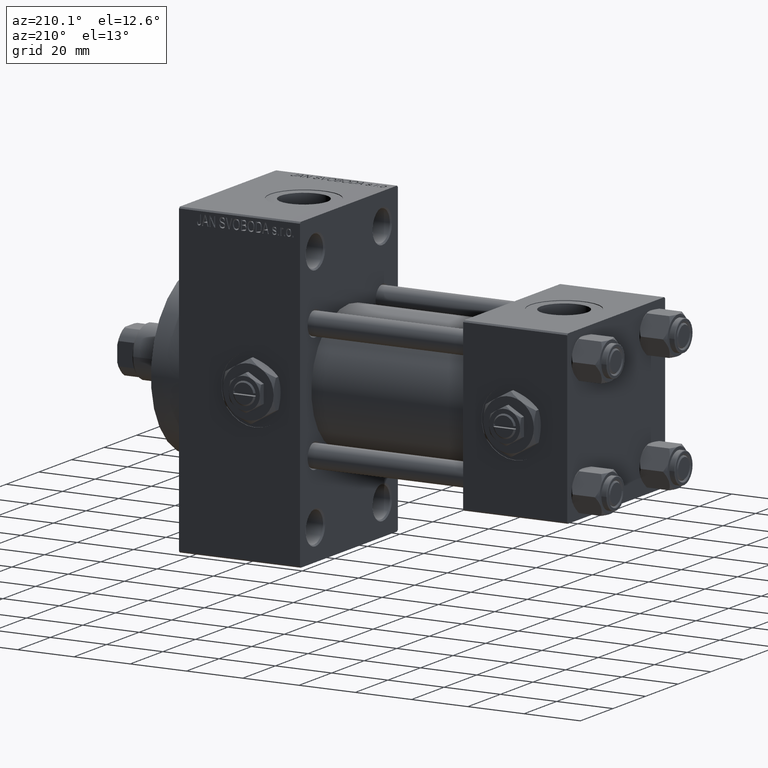
[diagram: clean part render]
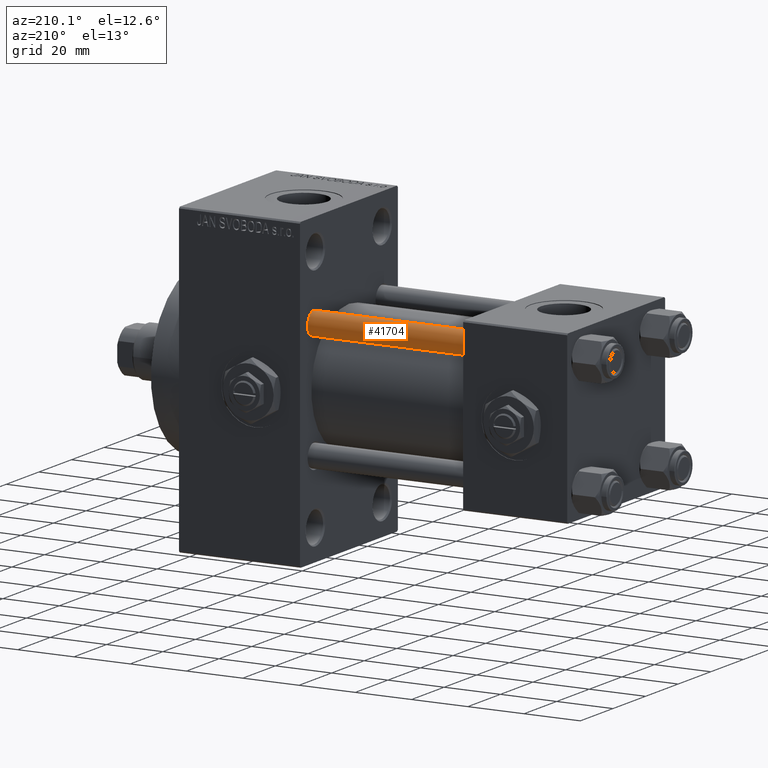
[diagram: same view with one face highlighted and labeled with its STEP entity id]
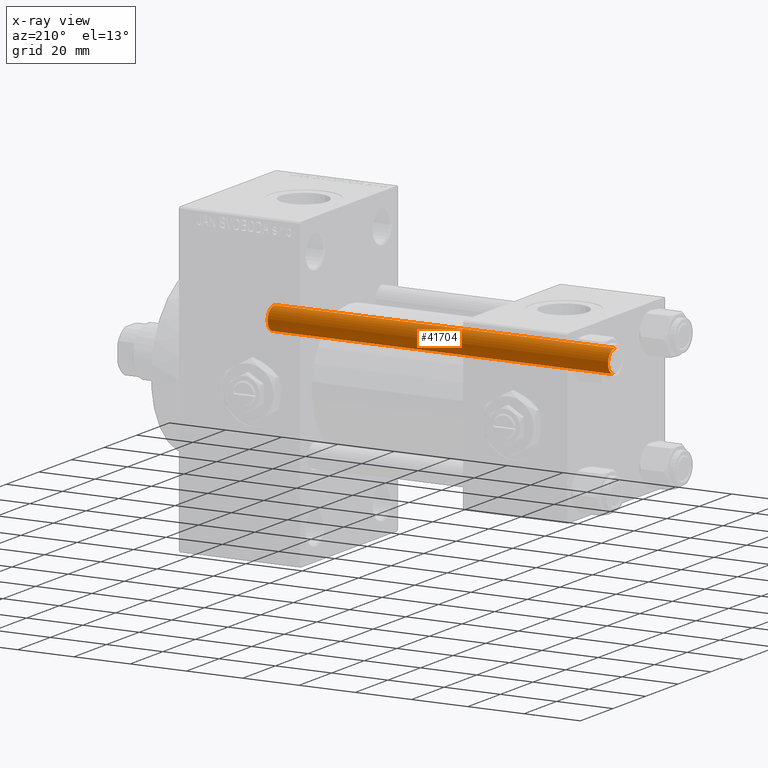
[diagram: x-ray of the same camera — body ghosted, the highlighted face saturated]
A machine part, auxiliary view. The second image highlights one B-rep face of the part: STEP entity #41704.
The next image is the same camera in x-ray: the body ghosted, the highlighted face saturated — about 0% of this face is hidden behind the body in this view.
In plain terms, the highlighted cylindrical surface (edge-blend (fillet) strip) has radius 4 mm, axis along (-1, -0, 0).
Its self-contained STEP definition (entity closure, byte-faithful):
#310 = AXIS2_PLACEMENT_3D ( 'NONE', #45401, #11088, #45905 ) ;
#1865 = CYLINDRICAL_SURFACE ( 'NONE', #27523, 4.000000000000000000 ) ;
#3306 = DIRECTION ( 'NONE',  ( -0.000000000000000000, -0.000000000000000000, -1.000000000000000000 ) ) ;
#6566 = CARTESIAN_POINT ( 'NONE',  ( 4.000000000000000000, 4.898587196589411843E-16, 0.5000000000000559552 ) ) ;
#7155 = EDGE_CURVE ( 'NONE', #29593, #13588, #49437, .T. ) ;
#11088 = DIRECTION ( 'NONE',  ( 0.000000000000000000, 0.000000000000000000, -1.000000000000000000 ) ) ;
#13137 = DIRECTION ( 'NONE',  ( -1.000000000000000000, 0.000000000000000000, 0.000000000000000000 ) ) ;
#13588 = VERTEX_POINT ( 'NONE', #6566 ) ;
#14215 = ORIENTED_EDGE ( 'NONE', *, *, #40678, .T. ) ;
#14704 = ORIENTED_EDGE ( 'NONE', *, *, #14865, .T. ) ;
#14865 = EDGE_CURVE ( 'NONE', #13588, #42618, #48627, .T. ) ;
#14887 = CARTESIAN_POINT ( 'NONE',  ( 4.000000000000000000, 4.898587196589411843E-16, 122.0000000000000000 ) ) ;
#17871 = CARTESIAN_POINT ( 'NONE',  ( 0.000000000000000000, 0.000000000000000000, 122.0000000000000000 ) ) ;
#19204 = DIRECTION ( 'NONE',  ( 1.000000000000000000, 0.000000000000000000, 0.000000000000000000 ) ) ;
#19268 = ORIENTED_EDGE ( 'NONE', *, *, #7155, .T. ) ;
#20463 = VECTOR ( 'NONE', #3306, 1000.000000000000000 ) ;
#22720 = VECTOR ( 'NONE', #26658, 1000.000000000000000 ) ;
#23378 = VERTEX_POINT ( 'NONE', #40683 ) ;
#23465 = DIRECTION ( 'NONE',  ( -0.000000000000000000, -0.000000000000000000, 1.000000000000000000 ) ) ;
#25851 = CARTESIAN_POINT ( 'NONE',  ( -4.000000000000000000, 0.000000000000000000, 122.0000000000000000 ) ) ;
#25897 = ORIENTED_EDGE ( 'NONE', *, *, #38893, .F. ) ;
#26658 = DIRECTION ( 'NONE',  ( -0.000000000000000000, -0.000000000000000000, -1.000000000000000000 ) ) ;
#26717 = CARTESIAN_POINT ( 'NONE',  ( 4.000000000000000000, 4.898587196589411843E-16, 121.5000000000000426 ) ) ;
#27045 = AXIS2_PLACEMENT_3D ( 'NONE', #42000, #23465, #19204 ) ;
#27523 = AXIS2_PLACEMENT_3D ( 'NONE', #17871, #43939, #13137 ) ;
#29396 = FACE_OUTER_BOUND ( 'NONE', #49120, .T. ) ;
#29593 = VERTEX_POINT ( 'NONE', #26717 ) ;
#29891 = CIRCLE ( 'NONE', #310, 4.000000000000000000 ) ;
#34270 = CARTESIAN_POINT ( 'NONE',  ( -4.000000000000000000, 0.000000000000000000, 0.5000000000000559552 ) ) ;
#34365 = LINE ( 'NONE', #25851, #20463 ) ;
#38893 = EDGE_CURVE ( 'NONE', #23378, #42618, #34365, .T. ) ;
#40678 = EDGE_CURVE ( 'NONE', #23378, #29593, #29891, .T. ) ;
#40683 = CARTESIAN_POINT ( 'NONE',  ( -4.000000000000000000, 0.000000000000000000, 121.5000000000000426 ) ) ;
#41704 = ADVANCED_FACE ( 'NONE', ( #29396 ), #1865, .T. ) ;
#42000 = CARTESIAN_POINT ( 'NONE',  ( 0.000000000000000000, 0.000000000000000000, 0.5000000000000559552 ) ) ;
#42618 = VERTEX_POINT ( 'NONE', #34270 ) ;
#43939 = DIRECTION ( 'NONE',  ( -0.000000000000000000, -0.000000000000000000, -1.000000000000000000 ) ) ;
#45401 = CARTESIAN_POINT ( 'NONE',  ( 0.000000000000000000, 0.000000000000000000, 121.5000000000000426 ) ) ;
#45905 = DIRECTION ( 'NONE',  ( 1.000000000000000000, 0.000000000000000000, 0.000000000000000000 ) ) ;
#48627 = CIRCLE ( 'NONE', #27045, 4.000000000000000000 ) ;
#49120 = EDGE_LOOP ( 'NONE', ( #14215, #19268, #14704, #25897 ) ) ;
#49437 = LINE ( 'NONE', #14887, #22720 ) ;